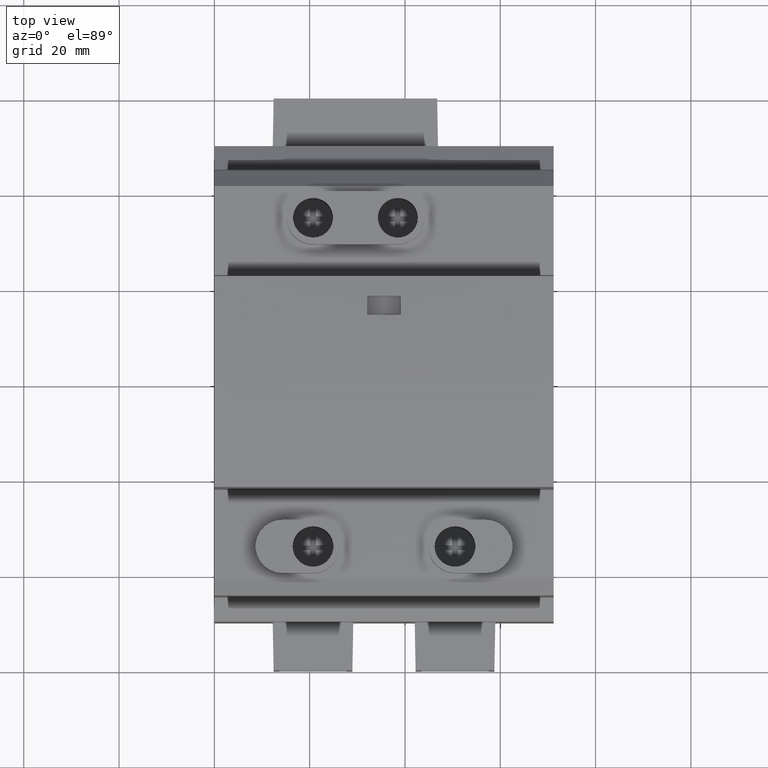
[diagram: clean part render]
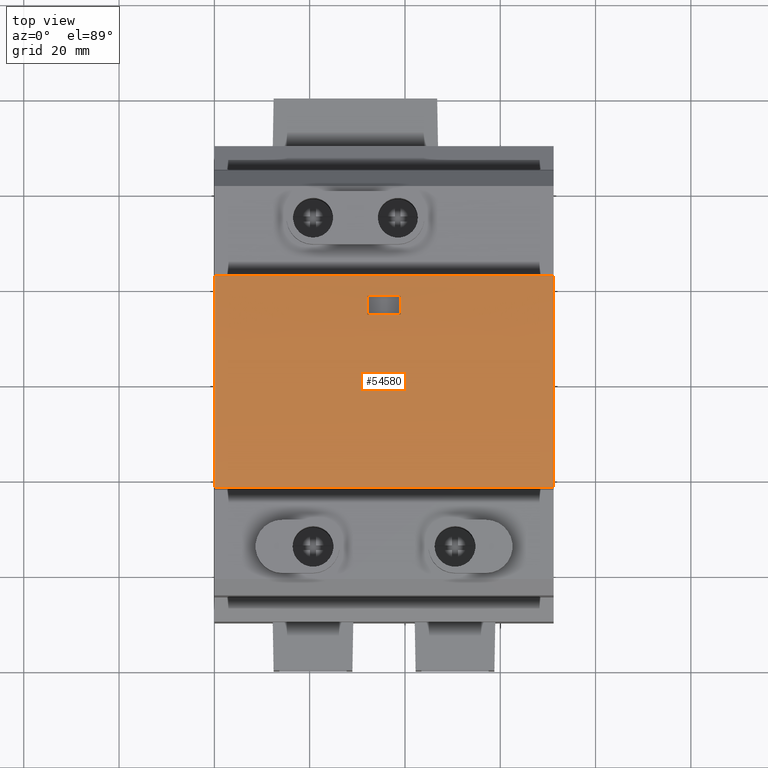
[diagram: same view with one face highlighted and labeled with its STEP entity id]
A machine part, top view. The second image highlights one B-rep face of the part: STEP entity #54580.
In plain terms, the highlighted cylindrical surface (partial cylindrical patch) has radius 200 mm, axis along (-1, 0, -0).
Its self-contained STEP definition (entity closure, byte-faithful):
#4500=CARTESIAN_POINT('',(177.433832864192,227.235822234483,
8.90000000000008));
#4510=VERTEX_POINT('',#4500);
#4540=CARTESIAN_POINT('',(155.270798699032,28.4676157310433,
8.90000000000006));
#4550=DIRECTION('',(-1.22464679914735E-16,0.,1.));
#4560=DIRECTION('',(1.,0.,1.22464679914735E-16));
#4570=AXIS2_PLACEMENT_3D('',#4540,#4550,#4560);
#4580=CIRCLE('',#4570,200.);
#4590=CARTESIAN_POINT('',(133.10776455667,227.235822237025,
8.90000000000006));
#4600=VERTEX_POINT('',#4590);
#4610=EDGE_CURVE('',#4510,#4600,#4580,.T.);
#51380=CARTESIAN_POINT('',(133.10776455667,227.235822237025,
80.1000000000065));
#51390=VERTEX_POINT('',#51380);
#51510=CARTESIAN_POINT('',(133.10776455667,227.235822237025,
8.90000000000006));
#51520=DIRECTION('',(-1.22464679914735E-16,0.,1.));
#51530=VECTOR('',#51520,1.);
#51540=LINE('',#51510,#51530);
#51550=EDGE_CURVE('',#4600,#51390,#51540,.T.);
#52140=CARTESIAN_POINT('',(137.293135410151,227.657986037119,
47.9930144582504));
#52150=DIRECTION('',(-0.998633280838549,-0.0521928011070618,
-0.00273530880057964));
#52160=DIRECTION('',(0.0522644276887813,-0.997264688634234,
-0.0522644276887139));
#52170=AXIS2_PLACEMENT_3D('',#52140,#52150,#52160);
#52180=PLANE('',#52170);
#52230=CARTESIAN_POINT('',(137.293135410151,227.657986037119,
47.9930144582504));
#52240=VERTEX_POINT('',#52230);
#52270=CARTESIAN_POINT('',(155.270798699032,28.4676157310433,
8.90000000000006));
#52280=DIRECTION('',(-1.22464679914735E-16,0.,1.));
#52290=DIRECTION('',(1.,0.,1.22464679914735E-16));
#52300=AXIS2_PLACEMENT_3D('',#52270,#52280,#52290);
#52310=CYLINDRICAL_SURFACE('',#52300,200.);
#52320=CARTESIAN_POINT('',(137.31218096482,227.659704050529,
41.0068954968918));
#52330=CARTESIAN_POINT('',(137.310593831285,227.659560958879,
41.5890720770044));
#52340=CARTESIAN_POINT('',(137.309006698745,227.659417848196,
42.1712486571204));
#52350=CARTESIAN_POINT('',(137.3074195672,227.65927471848,
42.7534252372318));
#52360=CARTESIAN_POINT('',(137.305832435655,227.659131588763,
43.3356018173479));
#52370=CARTESIAN_POINT('',(137.304245305104,227.658988440013,
43.917778397457));
#52380=CARTESIAN_POINT('',(137.302658175548,227.65884527223,
44.4999549775726));
#52390=CARTESIAN_POINT('',(137.301071045992,227.658702104446,
45.0821315576857));
#52400=CARTESIAN_POINT('',(137.299483917431,227.658558917628,
45.6643081377987));
#52410=CARTESIAN_POINT('',(137.297896789865,227.658415711777,
46.2464847179129));
#52420=CARTESIAN_POINT('',(137.296309662299,227.658272505926,
46.8286612980264));
#52430=CARTESIAN_POINT('',(137.294722535728,227.658129281041,
47.4108378781381));
#52440=CARTESIAN_POINT('',(137.293135410151,227.657986037122,
47.9930144582502));
#52450=B_SPLINE_CURVE_WITH_KNOTS('',3,(#52320,#52330,#52340,#52350,
#52360,#52370,#52380,#52390,#52400,#52410,#52420,#52430,#52440),
.UNSPECIFIED.,.F.,.F.,(4,3,3,3,4),(0.,1.74653628336929,3.49307256675116,
5.2396088501444,6.98614513354639),.UNSPECIFIED.);
#52460=SURFACE_CURVE('',#52450,(#52310,#52180),.CURVE_3D.);
#52470=CARTESIAN_POINT('',(137.31218096482,227.659704050526,
41.0068954968917));
#52480=VERTEX_POINT('',#52470);
#52490=EDGE_CURVE('',#52480,#52240,#52460,.T.);
#53200=CARTESIAN_POINT('',(141.247663639997,227.975389221492,
40.9903511381288));
#53210=VERTEX_POINT('',#53200);
#53340=CARTESIAN_POINT('',(155.270798699032,28.4676157310433,
51.4461104964673));
#53350=DIRECTION('',(-4.14560463580297E-15,0.0523359562429438,
0.998629534754574));
#53360=DIRECTION('',(-7.67628765616645E-14,0.998629534754574,
-0.0523359562429438));
#53370=AXIS2_PLACEMENT_3D('',#53340,#53350,#53360);
#53380=ELLIPSE('',#53370,200.274469199584,200.);
#53390=EDGE_CURVE('',#53210,#52480,#53380,.T.);
#53510=CARTESIAN_POINT('',(141.198393212965,226.668395266892,
47.9411522035838));
#53520=DIRECTION('',(0.998633280838556,-0.052192801106927,
-0.00273530880057842));
#53530=DIRECTION('',(0.0522644276886466,0.997264688634241,
0.052264427688714));
#53540=AXIS2_PLACEMENT_3D('',#53510,#53520,#53530);
#53550=PLANE('',#53540);
#53620=CARTESIAN_POINT('',(141.266960899301,227.976744662225,
48.0097198899195));
#53630=VERTEX_POINT('',#53620);
#53730=CARTESIAN_POINT('',(141.266960899301,227.976744662227,
48.0097198899199));
#53740=CARTESIAN_POINT('',(141.265352798458,227.976631787274,
47.4247724939071));
#53750=CARTESIAN_POINT('',(141.263744696591,227.976518892712,
46.8398250978951));
#53760=CARTESIAN_POINT('',(141.262136593699,227.976405978539,
46.2548777018961));
#53770=CARTESIAN_POINT('',(141.260528490807,227.976293064366,
45.6699303058997));
#53780=CARTESIAN_POINT('',(141.25892038689,227.976180130583,
45.084982909905));
#53790=CARTESIAN_POINT('',(141.257312281948,227.976067177188,
44.5000355139226));
#53800=CARTESIAN_POINT('',(141.255704177006,227.975954223794,
43.9150881179399));
#53810=CARTESIAN_POINT('',(141.254096071039,227.975841250789,
43.3301407219731));
#53820=CARTESIAN_POINT('',(141.252487964047,227.975728258174,
42.7451933260013));
#53830=CARTESIAN_POINT('',(141.251683910551,227.975671761866,
42.4527196280176));
#53840=CARTESIAN_POINT('',(141.250879856799,227.975615260655,
42.1602459300427));
#53850=CARTESIAN_POINT('',(141.250075802791,227.975558754542,
41.8677722320574));
#53860=CARTESIAN_POINT('',(141.249271748782,227.975502248428,
41.5752985340792));
#53870=CARTESIAN_POINT('',(141.248467694518,227.975445737412,
41.2828248361055));
#53880=CARTESIAN_POINT('',(141.247663639997,227.975389221493,
40.9903511381284));
#53890=B_SPLINE_CURVE_WITH_KNOTS('',3,(#53730,#53740,#53750,#53760,
#53770,#53780,#53790,#53800,#53810,#53820,#53830,#53840,#53850,#53860,
#53870,#53880),.UNSPECIFIED.,.F.,.F.,(4,3,3,3,3,4),(0.,1.75484885203804,
3.50969770406539,5.26454655608021,6.14197098208575,7.01939540808628),
.UNSPECIFIED.);
#53900=SURFACE_CURVE('',#53890,(#52310,#53550),.CURVE_3D.);
#53910=EDGE_CURVE('',#53630,#53210,#53900,.T.);
#54270=ORIENTED_EDGE('',*,*,#53910,.F.);
#54280=ORIENTED_EDGE('',*,*,#53390,.F.);
#54290=ORIENTED_EDGE('',*,*,#52490,.F.);
#54300=CARTESIAN_POINT('',(155.270798699032,28.4676157310433,
37.5538894959423));
#54310=DIRECTION('',(-2.92263617253177E-15,0.0523359562429438,
-0.998629534754574));
#54320=DIRECTION('',(-5.81071924439554E-14,0.998629534754574,
0.0523359562429438));
#54330=AXIS2_PLACEMENT_3D('',#54300,#54310,#54320);
#54340=ELLIPSE('',#54330,200.274469199584,200.);
#54350=EDGE_CURVE('',#52240,#53630,#54340,.T.);
#54360=ORIENTED_EDGE('',*,*,#54350,.F.);
#54370=EDGE_LOOP('',(#54360,#54290,#54280,#54270));
#54380=FACE_BOUND('',#54370,.T.);
#54390=CARTESIAN_POINT('',(155.270798699032,28.4676157310433,
80.1000000000065));
#54400=DIRECTION('',(-1.22464679914735E-16,0.,1.));
#54410=DIRECTION('',(1.,0.,1.22464679914735E-16));
#54420=AXIS2_PLACEMENT_3D('',#54390,#54400,#54410);
#54430=CIRCLE('',#54420,200.);
#54440=CARTESIAN_POINT('',(177.433832864192,227.235822234483,
80.1000000000065));
#54450=VERTEX_POINT('',#54440);
#54460=EDGE_CURVE('',#54450,#51390,#54430,.T.);
#54470=ORIENTED_EDGE('',*,*,#54460,.F.);
#54480=ORIENTED_EDGE('',*,*,#51550,.T.);
#54490=ORIENTED_EDGE('',*,*,#4610,.T.);
#54500=CARTESIAN_POINT('',(177.433832864192,227.235822234483,
8.90000000000006));
#54510=DIRECTION('',(-1.22464679914735E-16,0.,1.));
#54520=VECTOR('',#54510,1.);
#54530=LINE('',#54500,#54520);
#54540=EDGE_CURVE('',#4510,#54450,#54530,.T.);
#54550=ORIENTED_EDGE('',*,*,#54540,.F.);
#54560=EDGE_LOOP('',(#54550,#54490,#54480,#54470));
#54570=FACE_OUTER_BOUND('',#54560,.T.);
#54580=ADVANCED_FACE('',(#54380,#54570),#52310,.T.);